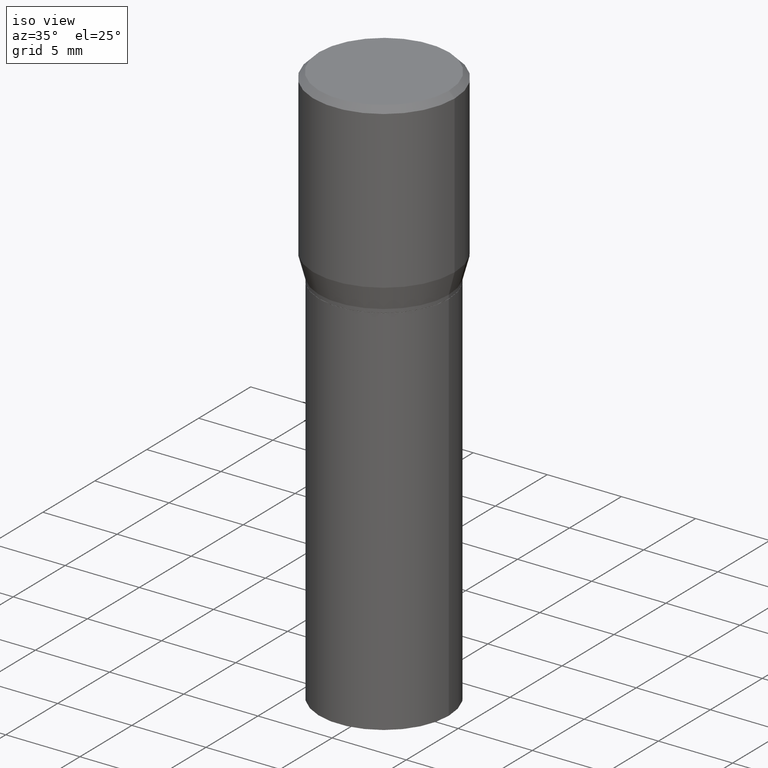
[diagram: clean part render]
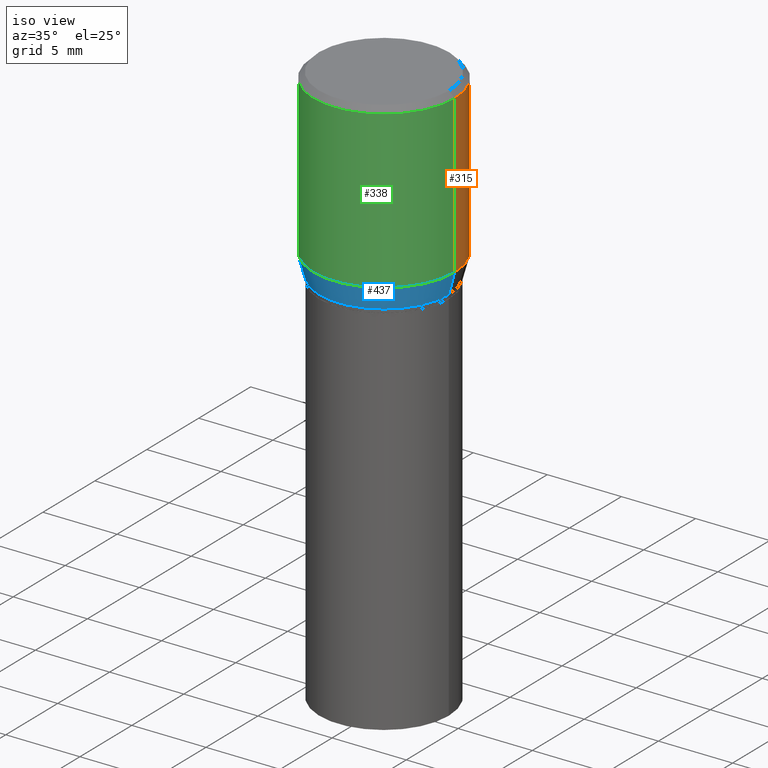
[diagram: same view with three faces highlighted in distinct colors, each labeled with its STEP entity id]
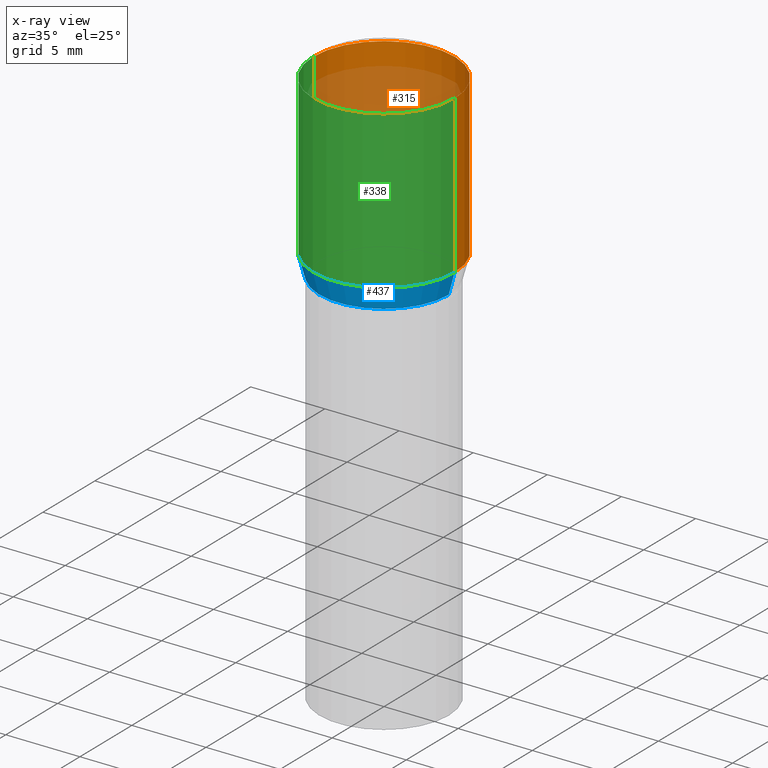
[diagram: x-ray of the same camera — body ghosted, the three highlighted faces saturated]
A machine part, iso view with three faces highlighted in distinct colors.
The next image is the same camera in x-ray (body ghosted, the three faces saturated) — at least one of them is partly hidden behind the body in this view.
Their STEP definitions:

[orange] entity #315 — the highlighted cylindrical surface (partial cylindrical patch) has radius 4.7625 mm, axis along (-0, 0, 1).
#12 = AXIS2_PLACEMENT_3D ( 'NONE', #449, #237, #167 ) ;
#45 = LINE ( 'NONE', #191, #336 ) ;
#61 = DIRECTION ( 'NONE',  ( 1.000000000000000000, -6.982962677686265922E-15, 0.000000000000000000 ) ) ;
#63 = DIRECTION ( 'NONE',  ( -2.445468806185136877E-29, 3.491481338843145188E-15, 1.000000000000000000 ) ) ;
#87 = AXIS2_PLACEMENT_3D ( 'NONE', #444, #128, #61 ) ;
#97 = CARTESIAN_POINT ( 'NONE',  ( 0.000000000000000000, 0.000000000000000000, 0.000000000000000000 ) ) ;
#103 = CARTESIAN_POINT ( 'NONE',  ( 0.1875000000000000278, -1.309305502066175008E-15, 9.142831454617381013E-30 ) ) ;
#128 = DIRECTION ( 'NONE',  ( -2.445468806185136597E-29, 3.491481338843145583E-15, 1.000000000000000000 ) ) ;
#132 = ORIENTED_EDGE ( 'NONE', *, *, #233, .T. ) ;
#133 = DIRECTION ( 'NONE',  ( 1.000000000000000000, -6.982962677686265922E-15, 4.876176775795935793E-29 ) ) ;
#138 = CARTESIAN_POINT ( 'NONE',  ( -0.1875000000000000278, -1.752842087791908777E-16, -0.4317800074019257361 ) ) ;
#144 = ORIENTED_EDGE ( 'NONE', *, *, #359, .T. ) ;
#146 = ORIENTED_EDGE ( 'NONE', *, *, #392, .F. ) ;
#155 = EDGE_LOOP ( 'NONE', ( #144, #132, #358, #146 ) ) ;
#162 = AXIS2_PLACEMENT_3D ( 'NONE', #97, #377, #133 ) ;
#167 = DIRECTION ( 'NONE',  ( 1.000000000000000000, -6.982962677686265922E-15, 0.000000000000000000 ) ) ;
#181 = VERTEX_POINT ( 'NONE', #439 ) ;
#182 = VECTOR ( 'NONE', #63, 39.37007874015748143 ) ;
#191 = CARTESIAN_POINT ( 'NONE',  ( -0.1875000000000000278, 1.332267629550188046E-15, -9.223003294227947991E-30 ) ) ;
#233 = EDGE_CURVE ( 'NONE', #446, #181, #45, .T. ) ;
#237 = DIRECTION ( 'NONE',  ( -2.445468806185136597E-29, 3.491481338843145583E-15, 1.000000000000000000 ) ) ;
#264 = CARTESIAN_POINT ( 'NONE',  ( 0.1875000000000000278, -1.361677722148822285E-15, -0.01499999999999999944 ) ) ;
#297 = LINE ( 'NONE', #103, #182 ) ;
#304 = VERTEX_POINT ( 'NONE', #448 ) ;
#315 = ADVANCED_FACE ( 'NONE', ( #345 ), #372, .T. ) ;
#317 = VERTEX_POINT ( 'NONE', #264 ) ;
#321 = EDGE_CURVE ( 'NONE', #317, #181, #405, .T. ) ;
#328 = DIRECTION ( 'NONE',  ( -2.445468806185136877E-29, 3.491481338843145188E-15, 1.000000000000000000 ) ) ;
#336 = VECTOR ( 'NONE', #328, 39.37007874015748143 ) ;
#345 = FACE_OUTER_BOUND ( 'NONE', #155, .T. ) ;
#358 = ORIENTED_EDGE ( 'NONE', *, *, #321, .F. ) ;
#359 = EDGE_CURVE ( 'NONE', #304, #446, #376, .T. ) ;
#372 = CYLINDRICAL_SURFACE ( 'NONE', #162, 0.1875000000000000278 ) ;
#376 = CIRCLE ( 'NONE', #87, 0.1875000000000000278 ) ;
#377 = DIRECTION ( 'NONE',  ( -2.445468806185136597E-29, 3.491481338843145583E-15, 1.000000000000000000 ) ) ;
#392 = EDGE_CURVE ( 'NONE', #304, #317, #297, .T. ) ;
#405 = CIRCLE ( 'NONE', #12, 0.1875000000000000278 ) ;
#439 = CARTESIAN_POINT ( 'NONE',  ( -0.1875000000000000278, 5.523056003441748841E-16, -0.01499999999999999944 ) ) ;
#444 = CARTESIAN_POINT ( 'NONE',  ( 1.055904539235796751E-29, -1.507551838329378850E-15, -0.4317800074019257361 ) ) ;
#446 = VERTEX_POINT ( 'NONE', #138 ) ;
#448 = CARTESIAN_POINT ( 'NONE',  ( 0.1875000000000000278, -2.816857340395553661E-15, -0.4317800074019257361 ) ) ;
#449 = CARTESIAN_POINT ( 'NONE',  ( 3.668203209277705088E-31, -5.237222008264718399E-17, -0.01499999999999999944 ) ) ;

[blue] entity #437 — the highlighted conical surface has half-angle 15 deg.
#1 = EDGE_CURVE ( 'NONE', #446, #304, #262, .T. ) ;
#19 = AXIS2_PLACEMENT_3D ( 'NONE', #76, #78, #320 ) ;
#27 = CARTESIAN_POINT ( 'NONE',  ( -0.1718999999999999695, -3.323435510203601689E-16, -0.4900000000000001021 ) ) ;
#28 = CARTESIAN_POINT ( 'NONE',  ( 1.055904539235796751E-29, -1.507551838329378850E-15, -0.4317800074019257361 ) ) ;
#53 = ORIENTED_EDGE ( 'NONE', *, *, #1, .F. ) ;
#74 = EDGE_CURVE ( 'NONE', #464, #316, #240, .T. ) ;
#76 = CARTESIAN_POINT ( 'NONE',  ( 1.198279715030717173E-29, -1.710825856033141537E-15, -0.4900000000000001021 ) ) ;
#78 = DIRECTION ( 'NONE',  ( -2.445468806185136597E-29, 3.491481338843145583E-15, 1.000000000000000000 ) ) ;
#105 = DIRECTION ( 'NONE',  ( -0.2588190451025216277, 5.211531920934551831E-15, 0.9659258262890679791 ) ) ;
#115 = EDGE_CURVE ( 'NONE', #316, #304, #222, .T. ) ;
#130 = CARTESIAN_POINT ( 'NONE',  ( -0.1718999999999999695, -4.894028932615295339E-16, -0.4900000000000001021 ) ) ;
#137 = DIRECTION ( 'NONE',  ( -2.445468806185136597E-29, 3.491481338843145583E-15, 1.000000000000000000 ) ) ;
#138 = CARTESIAN_POINT ( 'NONE',  ( -0.1875000000000000278, -1.752842087791908777E-16, -0.4317800074019257361 ) ) ;
#141 = VECTOR ( 'NONE', #105, 39.37007874015748143 ) ;
#152 = EDGE_LOOP ( 'NONE', ( #313, #395, #276, #53 ) ) ;
#161 = VECTOR ( 'NONE', #163, 39.37007874015748143 ) ;
#163 = DIRECTION ( 'NONE',  ( 0.2588190451025216277, 1.565188264969619995E-15, 0.9659258262890679791 ) ) ;
#173 = CONICAL_SURFACE ( 'NONE', #337, 0.1718999999999999695, 0.2617993877991502960 ) ;
#204 = DIRECTION ( 'NONE',  ( 1.000000000000000000, -6.982962677686266711E-15, 0.000000000000000000 ) ) ;
#222 = LINE ( 'NONE', #253, #161 ) ;
#234 = DIRECTION ( 'NONE',  ( -2.445468806185136597E-29, 3.491481338843145583E-15, 1.000000000000000000 ) ) ;
#240 = CIRCLE ( 'NONE', #19, 0.1718999999999999695 ) ;
#253 = CARTESIAN_POINT ( 'NONE',  ( 0.1718999999999999695, -2.911197140327410581E-15, -0.4900000000000001021 ) ) ;
#262 = CIRCLE ( 'NONE', #429, 0.1875000000000000278 ) ;
#276 = ORIENTED_EDGE ( 'NONE', *, *, #115, .T. ) ;
#300 = EDGE_CURVE ( 'NONE', #464, #446, #414, .T. ) ;
#304 = VERTEX_POINT ( 'NONE', #448 ) ;
#313 = ORIENTED_EDGE ( 'NONE', *, *, #300, .F. ) ;
#316 = VERTEX_POINT ( 'NONE', #447 ) ;
#320 = DIRECTION ( 'NONE',  ( 1.000000000000000000, -6.982962677686266711E-15, 0.000000000000000000 ) ) ;
#337 = AXIS2_PLACEMENT_3D ( 'NONE', #340, #234, #204 ) ;
#340 = CARTESIAN_POINT ( 'NONE',  ( 1.198279715030717173E-29, -1.710825856033141537E-15, -0.4900000000000001021 ) ) ;
#341 = FACE_OUTER_BOUND ( 'NONE', #152, .T. ) ;
#395 = ORIENTED_EDGE ( 'NONE', *, *, #74, .T. ) ;
#414 = LINE ( 'NONE', #130, #141 ) ;
#429 = AXIS2_PLACEMENT_3D ( 'NONE', #28, #137, #462 ) ;
#437 = ADVANCED_FACE ( 'NONE', ( #341 ), #173, .T. ) ;
#446 = VERTEX_POINT ( 'NONE', #138 ) ;
#447 = CARTESIAN_POINT ( 'NONE',  ( 0.1718999999999999695, -2.911197140327410581E-15, -0.4900000000000001021 ) ) ;
#448 = CARTESIAN_POINT ( 'NONE',  ( 0.1875000000000000278, -2.816857340395553661E-15, -0.4317800074019257361 ) ) ;
#462 = DIRECTION ( 'NONE',  ( 1.000000000000000000, -6.982962677686265922E-15, 0.000000000000000000 ) ) ;
#464 = VERTEX_POINT ( 'NONE', #27 ) ;

[green] entity #338 — the highlighted cylindrical surface (partial cylindrical patch) has radius 4.7625 mm, axis along (-0, 0, 1).
#1 = EDGE_CURVE ( 'NONE', #446, #304, #262, .T. ) ;
#20 = ORIENTED_EDGE ( 'NONE', *, *, #1, .T. ) ;
#28 = CARTESIAN_POINT ( 'NONE',  ( 1.055904539235796751E-29, -1.507551838329378850E-15, -0.4317800074019257361 ) ) ;
#45 = LINE ( 'NONE', #191, #336 ) ;
#60 = EDGE_CURVE ( 'NONE', #181, #317, #436, .T. ) ;
#63 = DIRECTION ( 'NONE',  ( -2.445468806185136877E-29, 3.491481338843145188E-15, 1.000000000000000000 ) ) ;
#98 = DIRECTION ( 'NONE',  ( 1.000000000000000000, -6.982962677686265922E-15, 4.876176775795935793E-29 ) ) ;
#103 = CARTESIAN_POINT ( 'NONE',  ( 0.1875000000000000278, -1.309305502066175008E-15, 9.142831454617381013E-30 ) ) ;
#116 = CARTESIAN_POINT ( 'NONE',  ( 3.668203209277705088E-31, -5.237222008264718399E-17, -0.01499999999999999944 ) ) ;
#120 = DIRECTION ( 'NONE',  ( -2.445468806185136597E-29, 3.491481338843145583E-15, 1.000000000000000000 ) ) ;
#134 = CARTESIAN_POINT ( 'NONE',  ( 0.000000000000000000, 0.000000000000000000, 0.000000000000000000 ) ) ;
#137 = DIRECTION ( 'NONE',  ( -2.445468806185136597E-29, 3.491481338843145583E-15, 1.000000000000000000 ) ) ;
#138 = CARTESIAN_POINT ( 'NONE',  ( -0.1875000000000000278, -1.752842087791908777E-16, -0.4317800074019257361 ) ) ;
#181 = VERTEX_POINT ( 'NONE', #439 ) ;
#182 = VECTOR ( 'NONE', #63, 39.37007874015748143 ) ;
#191 = CARTESIAN_POINT ( 'NONE',  ( -0.1875000000000000278, 1.332267629550188046E-15, -9.223003294227947991E-30 ) ) ;
#217 = EDGE_LOOP ( 'NONE', ( #281, #20, #365, #401 ) ) ;
#233 = EDGE_CURVE ( 'NONE', #446, #181, #45, .T. ) ;
#262 = CIRCLE ( 'NONE', #429, 0.1875000000000000278 ) ;
#264 = CARTESIAN_POINT ( 'NONE',  ( 0.1875000000000000278, -1.361677722148822285E-15, -0.01499999999999999944 ) ) ;
#265 = FACE_OUTER_BOUND ( 'NONE', #217, .T. ) ;
#268 = AXIS2_PLACEMENT_3D ( 'NONE', #134, #293, #98 ) ;
#281 = ORIENTED_EDGE ( 'NONE', *, *, #233, .F. ) ;
#293 = DIRECTION ( 'NONE',  ( -2.445468806185136597E-29, 3.491481338843145583E-15, 1.000000000000000000 ) ) ;
#297 = LINE ( 'NONE', #103, #182 ) ;
#304 = VERTEX_POINT ( 'NONE', #448 ) ;
#317 = VERTEX_POINT ( 'NONE', #264 ) ;
#328 = DIRECTION ( 'NONE',  ( -2.445468806185136877E-29, 3.491481338843145188E-15, 1.000000000000000000 ) ) ;
#329 = DIRECTION ( 'NONE',  ( 1.000000000000000000, -6.982962677686265922E-15, 0.000000000000000000 ) ) ;
#331 = AXIS2_PLACEMENT_3D ( 'NONE', #116, #120, #329 ) ;
#336 = VECTOR ( 'NONE', #328, 39.37007874015748143 ) ;
#338 = ADVANCED_FACE ( 'NONE', ( #265 ), #410, .T. ) ;
#365 = ORIENTED_EDGE ( 'NONE', *, *, #392, .T. ) ;
#392 = EDGE_CURVE ( 'NONE', #304, #317, #297, .T. ) ;
#401 = ORIENTED_EDGE ( 'NONE', *, *, #60, .F. ) ;
#410 = CYLINDRICAL_SURFACE ( 'NONE', #268, 0.1875000000000000278 ) ;
#429 = AXIS2_PLACEMENT_3D ( 'NONE', #28, #137, #462 ) ;
#436 = CIRCLE ( 'NONE', #331, 0.1875000000000000278 ) ;
#439 = CARTESIAN_POINT ( 'NONE',  ( -0.1875000000000000278, 5.523056003441748841E-16, -0.01499999999999999944 ) ) ;
#446 = VERTEX_POINT ( 'NONE', #138 ) ;
#448 = CARTESIAN_POINT ( 'NONE',  ( 0.1875000000000000278, -2.816857340395553661E-15, -0.4317800074019257361 ) ) ;
#462 = DIRECTION ( 'NONE',  ( 1.000000000000000000, -6.982962677686265922E-15, 0.000000000000000000 ) ) ;